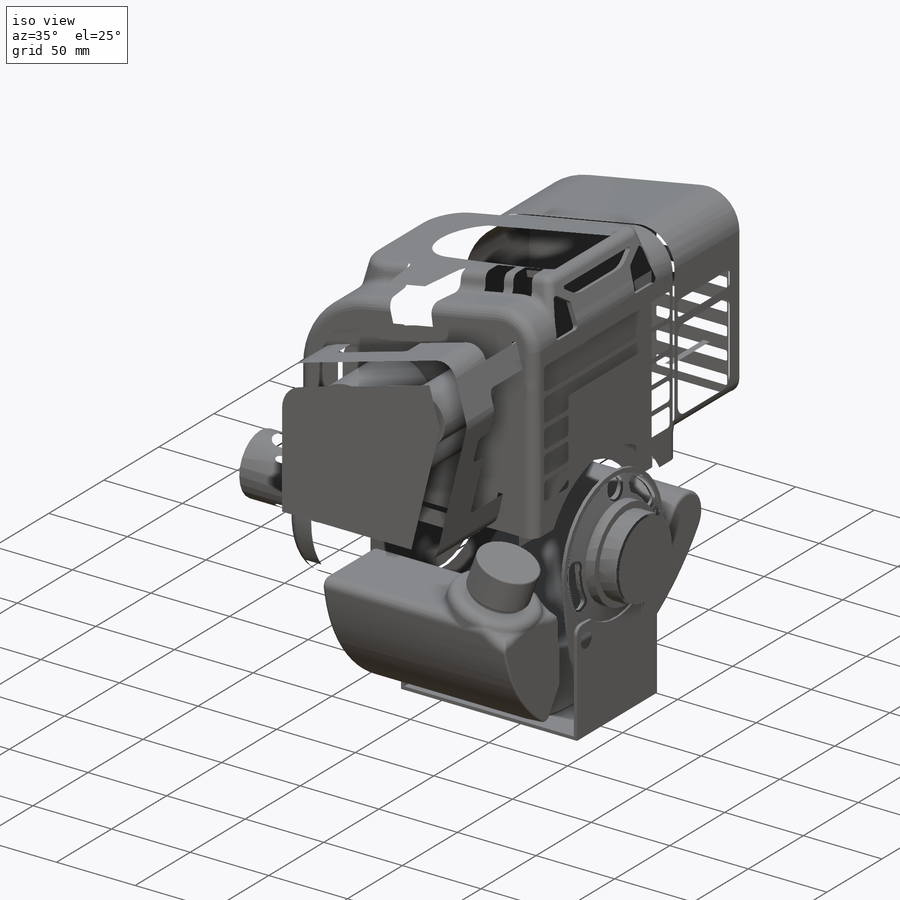
[diagram: iso view]
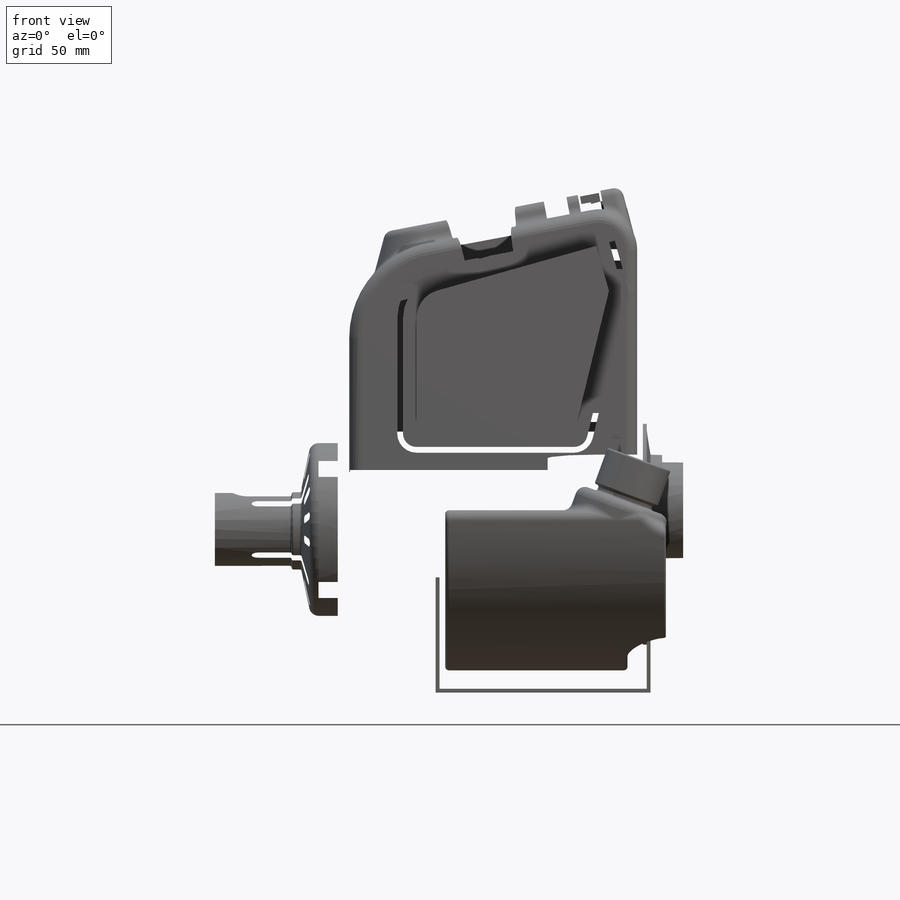
[diagram: front view]
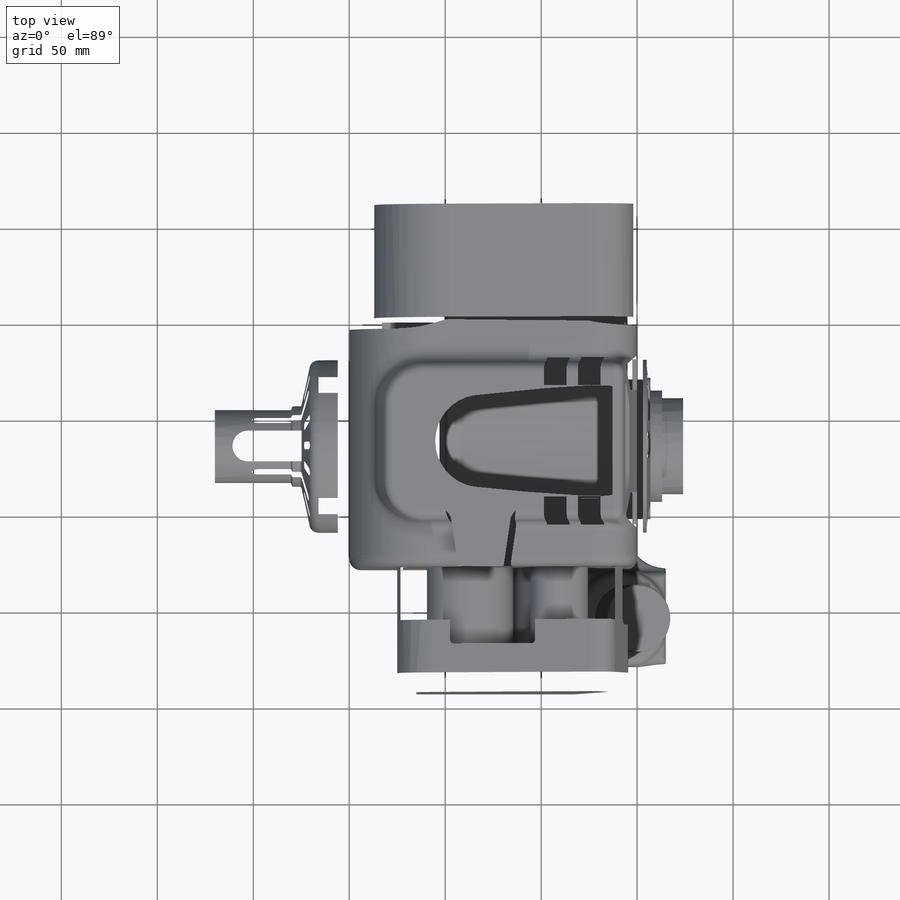
[diagram: top view]
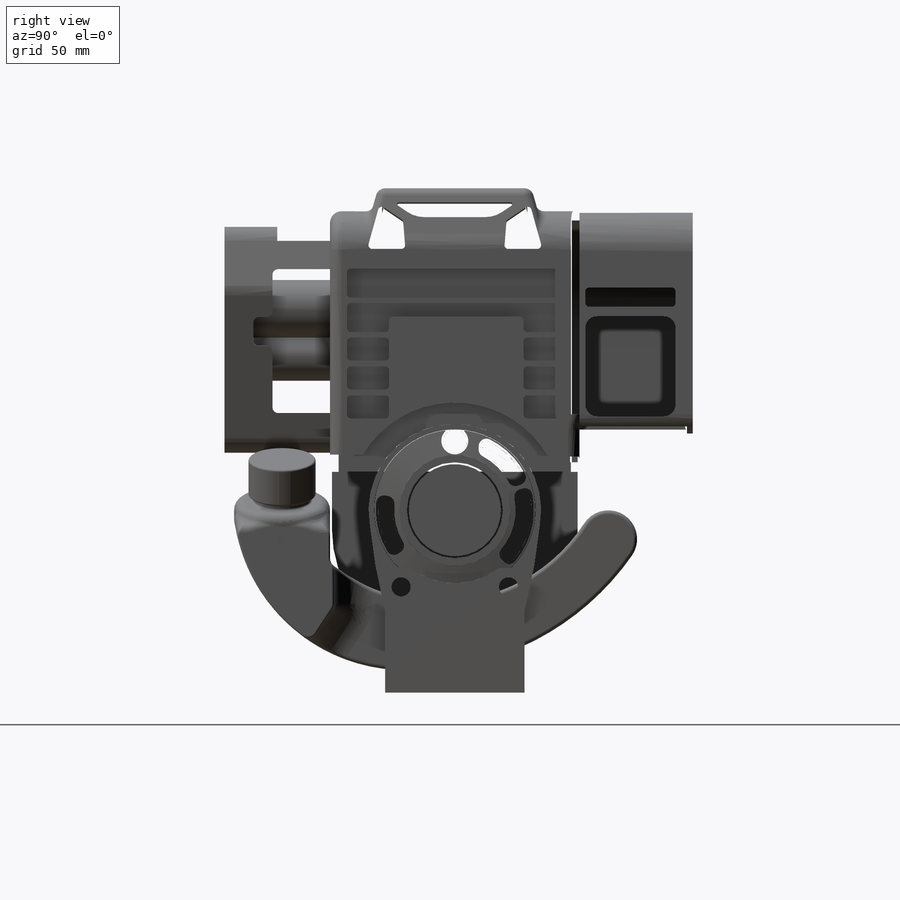
[diagram: right view]
SOLIDWORKS PART (.sldprt)
format: sldprt  version: not decoded by parser v0  size: 6,942,720 bytes
history: native  units: mm
features: sketch x59, extrude x35, fillet x30, cut_extrude x20, plane x16, revolve x2, pattern_linear x2, pattern_circular x2, material x1 (+10 scaffold rows collapsed)
feature tree (177):
  scaffold x10  (default folders/planes/origin — collapsed)
  material  "材质 <未指定>"
  plane  "前视基准面"
  plane  "上视基准面"
  plane  "右视基准面"
  sketch  "草图1"  dims[c1.D4=50.0mm c1.D5=20.0mm c1.D1=220.0mm c1.D2=250.0mm c1.D3=150.0mm c2.D1=180.0mm]
  extrude  "凸台-拉伸1"  Depth=130mm
  plane  "基准面1"  Offset=10mm
  sketch  "草图2"  dims[D3=20.0mm D1=80.0mm D2=125.0mm D4=2.0mm]
  extrude  "凸台-拉伸2"  [1 undecoded]
  sketch  "草图3"  dims[c1.D2=48.0mm c1.D6=20.0mm c1.D8=10.0mm c2.D2=~4.467886mm c2.D3=135.0mm c2.D4=130.0mm c2.D1=2.0mm c2.D5=95.0mm c2.D7=54.0mm c3.D1=0.0mm]
  extrude  "凸台-拉伸3"  Depth=60mm
  sketch  "草图55"  dims[D3=15.0mm D1=0.0mm D2=4.0mm]
  cut_extrude  "切除-拉伸33"  Depth=5mm
  sketch  "草图4"  dims[c1.D6=25.0mm c1.D7=10.0mm c1.D1=100.0mm c1.D2=120.0mm c1.D3=10.0mm c1.D4=120.0mm c1.D5=70.0mm c2.D6=~3.123202mm c2.D2=120.0mm c2.D8=120.0mm c2.D9=25.0mm]
  extrude  "凸台-拉伸4"  Depth=65mm
  fillet  "圆角7"  Radius=5mm
  plane  "基准面2"  Offset=3mm
  fillet  "圆角18"  Radius=6mm
  sketch  "草图7"  dims[c1.D1=~111.127608mm c1.D2=~89.247561mm c2.D1=121.0mm c2.D2=130.0mm c2.D3=10.0mm]
  cut_extrude  "切除-拉伸4"  Depth=10mm
  sketch  "草图8"  dims[c1.D15=2.0mm c1.D1=~5.973829mm c1.D2=~72.017824mm c2.D1=~5.641949mm c2.D2=~72.017824mm c3.D1=~6.305708mm c3.D2=~17.921486mm c4.D1=~7.965105mm c4.D2=~17.921486mm c5.D1=~6.305708mm c5.D2=~17.921486mm c6.D1=114.0mm c6.D2=114.0mm c6.D3=10.0mm c6.D4=15.0mm c6.D5=3.0mm c6.D6=15.0mm c6.D7=3.0mm c6.D8=12.0mm c6.D9=3.0mm c6.D10=3.0mm c6.D11=12.0mm c6.D12=12.0mm c6.D13=35.0mm c6.D14=8.0mm c6.D15=11.0mm]
  cut_extrude  "切除-拉伸6"  Depth=10mm
  sketch  "草图11"  dims[c1.D2=1.0mm c1.D3=15.0mm c1.D8=2.0mm c1.D13=2.0mm c1.D1=8.0mm c2.D2=60.0mm c2.D3=50.0mm c2.D4=10.0mm c3.D4=~116.565051deg c4.D4=17.0mm c4.D5=58.0mm c4.D6=32.0mm c4.D7=5.0mm c4.D8=20.0mm c4.D9=~12.119615mm c5.D9=~70.621613deg c6.D9=15.0mm c6.D10=10.0mm c6.D11=~6.874883mm c7.D11=75.0deg c7.D9=~15.130388mm c7.D12=~11.257538mm c7.D13=~12.168145mm]
  cut_extrude  "切除-拉伸7"  Depth=15mm
  plane  "基准面3"  Offset=3mm
  sketch  "草图12"  dims[D1=35.0mm]
  cut_extrude  "切除-拉伸8"  Depth=15mm
  sketch  "草图13"  dims[c1.D1=25.0mm c1.D3=22.0mm c2.D1=~30.175068mm c2.D2=70.0mm c3.D1=60.0mm]
  plane  "基准面4"
  cut_extrude  "切除-拉伸10"  [1 undecoded]
  sketch  "草图19"  dims[c1.D1=90.0mm c1.D2=150.0mm c2.D1=110.0mm]
  cut_extrude  "切除-拉伸15"  [1 undecoded]
  sketch  "草图20"  dims[c1.D1=30.0mm c1.D2=1.0mm c2.D1=1.0mm]
  extrude  "凸台-拉伸5"  Depth=45mm
  fillet  "圆角8"  Radius=2mm
  fillet  "圆角9"  Radius=2mm
  sketch  "草图14"  dims[c1.D1=~12.731282mm c1.D2=~6.931462mm c2.D1=~12.731282mm c2.D2=~20.874202mm c3.D1=15.0mm c3.D2=8.0mm c3.D3=10.0mm c3.D4=10.0mm c3.D5=12.0mm c3.D6=12.0mm c3.D7=30.0mm]
  cut_extrude  "切除-拉伸11"  Depth=20mm
  sketch  "草图17"  dims[D1=25.0mm D2=110.0mm]
  cut_extrude  "切除-拉伸14"  Depth=87mm
  fillet  "圆角11"  Radius=1mm
  fillet  "圆角12"  Radius=1mm
  sketch  "草图18"  dims[D1=85.0mm D2=95.0mm D3=95.0mm D4=30.0mm]
  extrude  "凸台-拉伸6"  Depth=5mm
  fillet  "圆角14"  Radius=5mm
  sketch  "草图21"  dims[D1=30.0mm D2=38.0mm]
  extrude  "凸台-拉伸7"  Depth=65mm
  plane  "基准面6"
  sketch  "草图23"  dims[D6=5.0mm D1=15.0mm D2=45.0mm D3=45.0mm D4=5.0mm D5=21.0mm]
  revolve  "旋转1"  Angle=360deg
  sketch  "草图24"  dims[c1.D1=~17.062455mm c1.D2=~53.733698mm c1.D4=~18.173484mm c2.D2=5.0mm c2.D3=5.0mm]
  extrude  "凸台-拉伸9"  Depth=10mm
  fillet  "圆角16"  Radius=1mm
  fillet  "圆角17"  Radius=1mm
  fillet  "圆角20"  Radius=1mm
  sketch  "草图28"  dims[D5=6.0mm D1=5.0mm D2=45.0mm D3=65.0mm D4=5.0mm]
  sketch  "草图27"  dims[c1.D4=1.0mm c1.D1=~17.15426mm c1.D2=~73.38211mm c2.D1=6.0mm c2.D2=45.0mm c2.D3=5.0mm c2.D5=90.0mm c3.D3=5.0mm c3.D5=89.0mm]
  cut_extrude  "切除-拉伸17"  Depth=20mm
  pattern_linear  "阵列(线性)1"  Count1=7 Count2=1 Spacing1=14mm Spacing2=10mm
  fillet  "圆角21"  Radius=0.5mm
  plane  "基准面9"  Offset=5mm
  sketch  "草图31"  dims[c1.D1=~175.270452mm c1.D2=15.0mm c1.D5=15.0mm c1.D7=90.0mm c1.D8=50.0mm c1.D9=140.0mm c1.D10=90.0mm c1.D11=50.0mm c2.D7=90.0mm c2.D8=5.0mm c2.D2=15.0mm c2.D6=90.0mm c3.D7=140.0mm c3.D8=90.0mm c3.D11=5.0mm c3.D12=5.0mm c3.D13=5.0mm c3.D1=200.0mm c3.D2=~34.048183mm c4.D1=50.0mm c4.D3=~64.329635mm c5.D3=110.0deg c5.D4=25.0mm c5.D5=180.0mm c5.D6=70.0mm c5.D11=~11.571135mm c5.D8=~53.74985mm c6.D11=40.0mm c6.D1=50.0mm c6.D3=190.0mm c6.D4=40.0mm c6.D5=20.0mm c6.D9=25.0mm c6.D10=20.0mm c6.D14=40.0mm c7.D5=20.0mm c7.D3=40.0mm c7.D14=190.0mm c7.D15=1.0mm c7.D16=5.0mm]
  extrude  "凸台-拉伸10"  Depth=95mm
  sketch  "草图32"  dims[D3=5.0mm D2=12.0mm D1=0.0mm]
  extrude  "凸台-拉伸11"  Depth=20mm
  fillet  "圆角23"  Radius=20mm
  fillet  "圆角26"  Radius=1mm
  fillet  "圆角27"  Radius=2mm
  plane  "基准面11"
  sketch  "草图36"  dims[c1.D1=5.0mm c1.D2=5.0mm c1.D3=~30.693861mm c2.D3=20.0deg c2.D4=15.0mm]
  cut_extrude  "切除-拉伸24"  [1 undecoded]
  sketch  "草图37"  dims[D1=50.0mm]
  extrude  "凸台-拉伸15"  Depth=5mm
  fillet  "圆角30"  Radius=5mm
  fillet  "圆角31"  Radius=5mm
  fillet  "圆角32"  Radius=5mm
  sketch  "草图38"  dims[D1=30.0mm]
  extrude  "凸台-拉伸16"  Depth=3mm
  sketch  "草图39"  dims[D1=35.0mm]
  extrude  "凸台-拉伸17"  Depth=20mm
  fillet  "圆角33"  Radius=1mm
  plane  "基准面12"  Offset=3mm
  sketch  "草图41"  dims[D1=0.0mm D2=3.0mm]
  cut_extrude  "切除-拉伸25"  [1 undecoded]
  fillet  "圆角34"  Radius=10mm
  sketch  "草图42"  dims[D1=10.0mm D2=~146.23432mm]
  cut_extrude  "切除-拉伸26"  Depth=10mm
  sketch  "草图43"  dims[D6=3.0mm D1=30.0mm D2=25.0mm D3=15.0mm D4=10.0mm D5=35.0mm]
  cut_extrude  "切除-拉伸27"  Depth=30mm
  sketch  "草图44"  dims[c1.D5=1.0mm c1.D6=1.0mm c1.D1=0.0mm c1.D2=~47.282202mm c2.D1=~5.417481mm c2.D2=~45.022399mm c3.D1=20.0mm c3.D2=8.0mm c3.D3=45.0mm c3.D4=4.0mm]
  cut_extrude  "切除-拉伸30"  Depth=6mm
  sketch  "草图45"  dims[D1=45.0mm D2=25.0mm D3=30.0mm D4=50.0mm D5=28.0mm D6=35.0mm D7=10.0mm D8=25.0mm]
  extrude  "凸台-拉伸26"  Depth=45mm
  plane  "基准面13"
  sketch  "草图47"  dims[c1.D2=2.0mm c1.D1=10.0mm c2.D2=4.0mm c2.D3=30.0mm c3.D2=4.0mm c3.D3=30.0mm]
  cut_extrude  "切除-拉伸31"  Depth=5mm
  pattern_circular  "阵列(圆周)1"  Count=18 Angle=20deg
  sketch  "草图48"  dims[D1=~24.919979mm]
  plane  "基准面14"
  sketch  "草图49"  dims[c1.D1=1.0mm c1.D2=5.5mm c1.D3=~22.92288mm c2.D3=55.0deg c2.D4=22.0mm]
  extrude  "凸台-拉伸27"  Depth=1mm
  fillet  "圆角36"  Radius=1mm
  pattern_circular  "阵列(圆周)2"  Count=4 Angle=360deg
  plane  "基准面15"
  sketch  "草图50"  dims[c1.D1=~6.354452mm c1.D2=8.0mm c2.D1=28.0mm]
  extrude  "凸台-拉伸30"  Depth=4mm
  sketch  "草图52"  dims[c1.D3=5.0mm c1.D1=50.0mm c1.D2=44.0mm c2.D3=50.0mm c2.D2=7.0mm]
  cut_extrude  "切除-拉伸32"  Depth=5mm
  fillet  "圆角39"  Radius=1mm
  plane  "基准面16"  Offset=3mm
  sketch  "草图56"  dims[c1.D1=110.0mm c1.D2=90.0mm c2.D1=~132.078244mm c2.D3=20.0mm c2.D4=~8.178347mm]
  extrude  "凸台-拉伸31"  [1 undecoded]
  sketch  "草图58"
  extrude  "凸台-拉伸32"  Depth=2mm
  cut_extrude  "切除-拉伸35"  [1 undecoded]
  sketch  "草图58<2>"  dims[D1=100.0mm]
  sketch  "草图59"  dims[D7=3.0mm D8=3.0mm D1=20.0mm D2=6.0mm D3=4.5mm D4=50.0mm D5=4.0mm D6=24.0mm D9=9.0mm D10=4.5mm]
  extrude  "凸台-拉伸33"  Depth=8mm
  sketch  "草图60"  dims[D1=50.0mm]
  extrude  "凸台-拉伸34"  Depth=20mm
  revolve  "基准轴2"  [1 undecoded]
  plane  "基准面17"
  sketch  "草图62"  dims[c1.D1=17.0mm c1.D2=3.0mm c1.D3=~5.876663mm c2.D1=8.0mm c2.D2=4.0mm c2.D3=6.0mm c2.D4=17.0mm]
  pattern_linear  "旋转2"  [2 undecoded]
  sketch  "草图74"  dims[c1.D1=~94.61449mm c1.D2=400.0mm c1.D3=70.0mm c1.D4=5.0mm c2.D3=70.0mm c2.D2=300.0mm c2.D1=70.0mm c3.D2=90.0mm c3.D3=~68.488471mm c3.D5=90.0mm]
  extrude  "凸台-拉伸41"  Depth=2mm
  sketch  "草图63"  dims[c1.D1=65.0mm c1.D2=80.0mm c1.D3=3.0mm c1.D4=12.0mm c2.D1=~0.693725mm c2.D3=~0.283797mm c2.D5=36.0mm c2.D6=~11.863971mm]
  cut_extrude  "切除-拉伸36"  [1 undecoded]
  fillet  "圆角45"  Radius=1mm
  sketch  "草图65"  dims[c1.D1=~202.845596mm c1.D12=2.0mm c2.D1=100.0mm c2.D2=6.0mm c2.D3=5.0mm c2.D4=75.0mm c2.D5=5.0mm c3.D4=5.0mm c3.D6=40.0mm c3.D7=6.0mm c3.D8=30.0mm c3.D9=5.0mm c3.D10=35.0mm c3.D11=10.0mm c4.D7=0.5mm]
  extrude  "凸台-拉伸35"  Depth=55mm
  sketch  "草图66"  dims[D1=5.0mm D2=42.0mm D3=3.0mm D4=42.0mm]
  extrude  "凸台-拉伸36"  Depth=20mm
  sketch  "草图69"  dims[D1=48.0mm]
  extrude  "凸台-拉伸37"  Depth=3mm
  fillet  "圆角46"  Radius=1mm
  sketch  "草图70"  dims[c1.D1=~70.176928mm c1.D2=~18.936631mm c2.D1=18.0mm c2.D2=75.0mm c2.D3=10.0mm]
  extrude  "凸台-拉伸38"  Depth=30mm
  fillet  "圆角47"  Radius=1mm
  sketch  "草图71"  dims[D1=35.0mm D2=26.0mm D3=30.0mm]
  extrude  "凸台-拉伸39"  Depth=25mm
  sketch  "草图73"  dims[c1.D1=4.0mm c1.D2=~17.271925mm c2.D2=~2.580635deg c3.D2=3.0mm c3.D3=2.0mm c3.D4=21.0mm c4.D3=3.0mm]
  cut_extrude  "切除-拉伸37"  Depth=40mm
  sketch  "草图72"  dims[D7=2.0mm D1=46.0mm D2=17.0mm D3=50.0mm D4=15.0mm D5=8.0mm D6=25.0mm]
  extrude  "凸台-拉伸40"  Depth=12mm
  fillet  "圆角48"  Radius=1mm
  fillet  "圆角49"  Radius=1mm
  fillet  "圆角50"  Radius=1mm
  sketch  "草图75"  dims[c1.D1=~19.536211mm c1.D5=5.0mm c2.D1=38.0mm c2.D2=95.0mm c2.D3=65.0mm c2.D4=13.0mm]
  extrude  "凸台-拉伸42"  Depth=2mm
  sketch  "草图76"  dims[c1.D1=10.7721mm c1.D2=90.0mm c1.D3=10.0mm c2.D1=28.0mm c2.D2=55.0mm]
  sketch  "草图77"  dims[c1.D1=~19.536211mm c1.D5=5.0mm c2.D1=38.0mm c2.D2=95.0mm c2.D3=65.0mm c2.D4=13.0mm]
  extrude  "凸台-拉伸43"  Depth=2mm
  sketch  "草图78"  dims[D1=~72.647615mm D2=112.0mm]
  extrude  "凸台-拉伸44"  Depth=2mm
  sketch  "草图80"  dims[c1.D1=75.0mm c1.D6=10.0mm c1.D11=1.0mm c1.D2=~48.593386mm c2.D2=20.0deg c2.D3=6.0mm c2.D4=2.0mm c2.D5=~28.547332mm c3.D5=135.0deg c3.D7=~65.699093mm c4.D7=30.0deg c4.D8=32.0mm c4.D9=20.0mm c4.D4=2.0mm c4.D10=2.0mm c5.D7=~15.537918mm c6.D7=30.0deg c6.D8=32.0mm]
  extrude  "凸台-拉伸46"  Depth=15mm
  sketch  "草图81"  dims[D1=0.0mm]
  extrude  "凸台-拉伸47"  Depth=70mm
  fillet  "圆角51"  Radius=6mm
  fillet  "圆角52"  Radius=1mm
  extrude  "凸台-拉伸48"  Depth=2mm
  fillet  "圆角53"  Radius=1mm
  sketch  "草图82"  dims[D1=16.0mm]
  extrude  "凸台-拉伸49"  Depth=10mm
  sketch  "草图83"  dims[D1=8.0mm]
  extrude  "凸台-拉伸50"  Depth=10mm
decode coverage: 139 of 150 modeling features carry decoded parameters
note: ~ marks probable driven/reference dimensions
note: 11 parameter values undecoded
summary: no parameter record found for 9 features
note: suppression state not decoded; provenance and decode notes live in map.json
